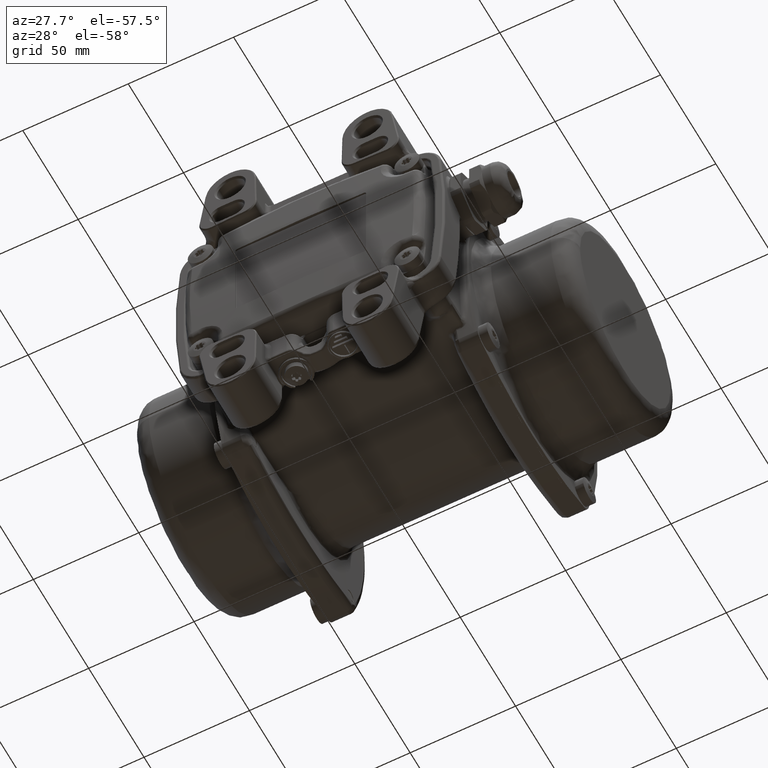
[diagram: clean part render]
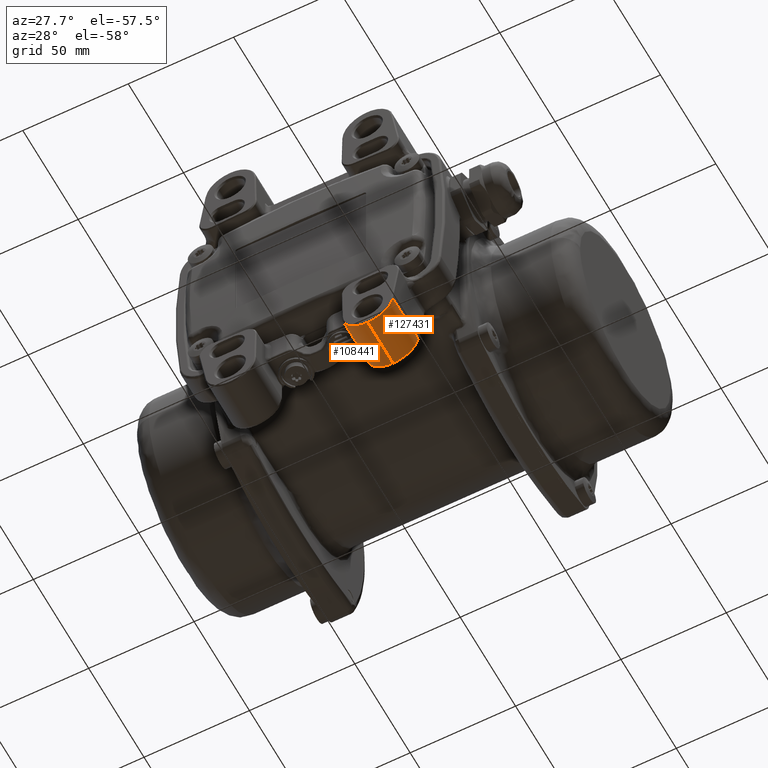
[diagram: same view with one multi-face feature highlighted, each face labeled with its STEP entity id]
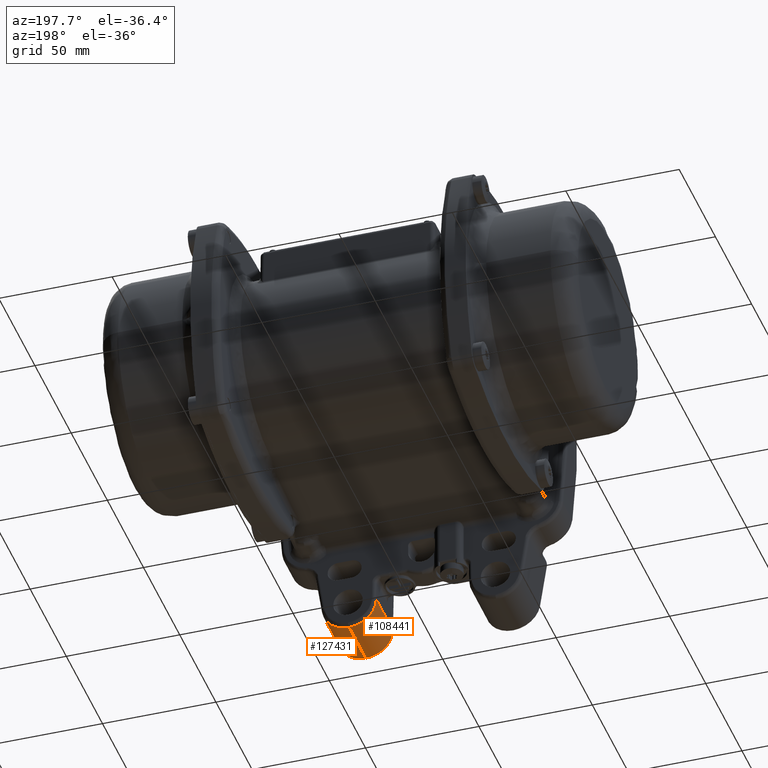
[diagram: same view with one multi-face feature highlighted, each face labeled with its STEP entity id]
A machine part, auxiliary view. The highlighted faces form ONE feature: a constant-radius fillet chain: 2 tangent blend faces with common blend radius 12 mm. The faces share edges in the B-rep.
A second angle (auxiliary view) of the same feature is appended — it is thin or edge-on in the first view.
Their STEP definitions:
[1] entity #127431 (Cylinder):
#9792 = EDGE_CURVE ( 'NONE', #117029, #71662, #145580, .T. ) ;
#19279 = LINE ( 'NONE', #88667, #157331 ) ;
#26999 = FACE_OUTER_BOUND ( 'NONE', #141202, .T. ) ;
#37051 = DIRECTION ( 'NONE',  ( 0.0000000000000000000, 0.0000000000000000000, -1.000000000000000000 ) ) ;
#38640 = AXIS2_PLACEMENT_3D ( 'NONE', #109056, #110284, #124039 ) ;
#41257 = ORIENTED_EDGE ( 'NONE', *, *, #44949, .F. ) ;
#44949 = EDGE_CURVE ( 'NONE', #113966, #71662, #19279, .T. ) ;
#52294 = CARTESIAN_POINT ( 'NONE',  ( 32.50000000000000700, -95.50000000000000000, -82.00000000000001400 ) ) ;
#54573 = CARTESIAN_POINT ( 'NONE',  ( 44.36819036034302100, -71.00000000000002800, -71.77371293355533100 ) ) ;
#54687 = CIRCLE ( 'NONE', #38640, 12.00000000000001100 ) ;
#55820 = EDGE_CURVE ( 'NONE', #117029, #143533, #147591, .T. ) ;
#58005 = DIRECTION ( 'NONE',  ( -2.775557561562899400E-017, 1.000000000000000000, -1.387778780781445100E-017 ) ) ;
#61213 = CARTESIAN_POINT ( 'NONE',  ( 44.36819036034302100, -72.50000000000001400, -71.77371293355533100 ) ) ;
#69514 = AXIS2_PLACEMENT_3D ( 'NONE', #128972, #58005, #85954 ) ;
#70265 = ORIENTED_EDGE ( 'NONE', *, *, #9792, .T. ) ;
#71662 = VERTEX_POINT ( 'NONE', #52294 ) ;
#71866 = VECTOR ( 'NONE', #168398, 1000.000000000000000 ) ;
#85954 = DIRECTION ( 'NONE',  ( -1.156482317317870300E-015, 0.0000000000000000000, -1.000000000000000000 ) ) ;
#85967 = ORIENTED_EDGE ( 'NONE', *, *, #107397, .F. ) ;
#88667 = CARTESIAN_POINT ( 'NONE',  ( 32.50000000000000700, -71.00000000000002800, -82.00000000000001400 ) ) ;
#92338 = DIRECTION ( 'NONE',  ( 2.775557561562899400E-017, -1.000000000000000000, 1.387778780781445100E-017 ) ) ;
#98010 = AXIS2_PLACEMENT_3D ( 'NONE', #122955, #122336, #37051 ) ;
#107397 = EDGE_CURVE ( 'NONE', #143533, #113966, #54687, .T. ) ;
#109056 = CARTESIAN_POINT ( 'NONE',  ( 32.50000000000000700, -72.50000000000001400, -70.00000000000000000 ) ) ;
#110284 = DIRECTION ( 'NONE',  ( -2.775557561562899400E-017, 1.000000000000000000, -1.387778780781445100E-017 ) ) ;
#113966 = VERTEX_POINT ( 'NONE', #182305 ) ;
#117029 = VERTEX_POINT ( 'NONE', #125077 ) ;
#122336 = DIRECTION ( 'NONE',  ( 2.775557561562899400E-017, -1.000000000000000000, 1.387778780781445100E-017 ) ) ;
#122955 = CARTESIAN_POINT ( 'NONE',  ( 32.50000000000000700, -71.00000000000002800, -70.00000000000000000 ) ) ;
#124039 = DIRECTION ( 'NONE',  ( -1.156482317317870300E-015, 0.0000000000000000000, -1.000000000000000000 ) ) ;
#125077 = CARTESIAN_POINT ( 'NONE',  ( 44.36819036034302100, -95.50000000000000000, -71.77371293355533100 ) ) ;
#127431 = ADVANCED_FACE ( 'NONE', ( #26999 ), #145008, .T. ) ;
#128972 = CARTESIAN_POINT ( 'NONE',  ( 32.50000000000000700, -95.50000000000000000, -70.00000000000000000 ) ) ;
#141202 = EDGE_LOOP ( 'NONE', ( #41257, #85967, #142752, #70265 ) ) ;
#142752 = ORIENTED_EDGE ( 'NONE', *, *, #55820, .F. ) ;
#143533 = VERTEX_POINT ( 'NONE', #61213 ) ;
#145008 = CYLINDRICAL_SURFACE ( 'NONE', #98010, 12.00000000000001100 ) ;
#145580 = CIRCLE ( 'NONE', #69514, 12.00000000000001100 ) ;
#147591 = LINE ( 'NONE', #54573, #71866 ) ;
#157331 = VECTOR ( 'NONE', #92338, 1000.000000000000000 ) ;
#168398 = DIRECTION ( 'NONE',  ( -2.775557561562899400E-017, 1.000000000000000000, -1.387778780781445100E-017 ) ) ;
#182305 = CARTESIAN_POINT ( 'NONE',  ( 32.50000000000000700, -72.50000000000001400, -82.00000000000001400 ) ) ;
[2] entity #108441 (Cylinder):
#9692 = CYLINDRICAL_SURFACE ( 'NONE', #146004, 12.00000000000001100 ) ;
#10321 = DIRECTION ( 'NONE',  ( 0.0000000000000000000, 0.0000000000000000000, -1.000000000000000000 ) ) ;
#18318 = EDGE_CURVE ( 'NONE', #44065, #25764, #28880, .T. ) ;
#19279 = LINE ( 'NONE', #88667, #157331 ) ;
#25764 = VERTEX_POINT ( 'NONE', #181984 ) ;
#28880 = LINE ( 'NONE', #29918, #166853 ) ;
#29918 = CARTESIAN_POINT ( 'NONE',  ( 20.50182765812330400, -71.00000000000002800, -70.20942887724733300 ) ) ;
#38380 = DIRECTION ( 'NONE',  ( -2.775557561562899400E-017, 1.000000000000000000, -1.387778780781445100E-017 ) ) ;
#40224 = EDGE_CURVE ( 'NONE', #71662, #44065, #51955, .T. ) ;
#44065 = VERTEX_POINT ( 'NONE', #103502 ) ;
#44949 = EDGE_CURVE ( 'NONE', #113966, #71662, #19279, .T. ) ;
#51955 = CIRCLE ( 'NONE', #112870, 12.00000000000001100 ) ;
#52065 = CARTESIAN_POINT ( 'NONE',  ( 32.50000000000000700, -72.50000000000001400, -70.00000000000000000 ) ) ;
#52294 = CARTESIAN_POINT ( 'NONE',  ( 32.50000000000000700, -95.50000000000000000, -82.00000000000001400 ) ) ;
#56189 = CARTESIAN_POINT ( 'NONE',  ( 32.50000000000000700, -95.50000000000000000, -70.00000000000000000 ) ) ;
#70376 = CARTESIAN_POINT ( 'NONE',  ( 32.50000000000000700, -71.00000000000002800, -70.00000000000000000 ) ) ;
#70503 = DIRECTION ( 'NONE',  ( 0.0000000000000000000, 0.0000000000000000000, -1.000000000000000000 ) ) ;
#71662 = VERTEX_POINT ( 'NONE', #52294 ) ;
#75348 = ORIENTED_EDGE ( 'NONE', *, *, #44949, .T. ) ;
#83054 = FACE_OUTER_BOUND ( 'NONE', #153466, .T. ) ;
#88667 = CARTESIAN_POINT ( 'NONE',  ( 32.50000000000000700, -71.00000000000002800, -82.00000000000001400 ) ) ;
#90382 = ORIENTED_EDGE ( 'NONE', *, *, #40224, .T. ) ;
#92338 = DIRECTION ( 'NONE',  ( 2.775557561562899400E-017, -1.000000000000000000, 1.387778780781445100E-017 ) ) ;
#99610 = DIRECTION ( 'NONE',  ( -2.775557561562899400E-017, 1.000000000000000000, -1.387778780781445100E-017 ) ) ;
#103502 = CARTESIAN_POINT ( 'NONE',  ( 20.50182773467363600, -95.50000000000392200, -70.20943326250476000 ) ) ;
#104639 = AXIS2_PLACEMENT_3D ( 'NONE', #52065, #38380, #10321 ) ;
#108441 = ADVANCED_FACE ( 'NONE', ( #83054 ), #9692, .T. ) ;
#110410 = ORIENTED_EDGE ( 'NONE', *, *, #18318, .T. ) ;
#112870 = AXIS2_PLACEMENT_3D ( 'NONE', #56189, #167557, #70503 ) ;
#113966 = VERTEX_POINT ( 'NONE', #182305 ) ;
#114547 = DIRECTION ( 'NONE',  ( 0.0000000000000000000, 0.0000000000000000000, -1.000000000000000000 ) ) ;
#130455 = EDGE_CURVE ( 'NONE', #113966, #25764, #146152, .T. ) ;
#146004 = AXIS2_PLACEMENT_3D ( 'NONE', #70376, #169894, #114547 ) ;
#146152 = CIRCLE ( 'NONE', #104639, 12.00000000000001100 ) ;
#153466 = EDGE_LOOP ( 'NONE', ( #172461, #75348, #90382, #110410 ) ) ;
#157331 = VECTOR ( 'NONE', #92338, 1000.000000000000000 ) ;
#166853 = VECTOR ( 'NONE', #99610, 1000.000000000000000 ) ;
#167557 = DIRECTION ( 'NONE',  ( -2.775557561562899400E-017, 1.000000000000000000, -1.387778780781445100E-017 ) ) ;
#169894 = DIRECTION ( 'NONE',  ( 2.775557561562899400E-017, -1.000000000000000000, 1.387778780781445100E-017 ) ) ;
#172461 = ORIENTED_EDGE ( 'NONE', *, *, #130455, .F. ) ;
#181984 = CARTESIAN_POINT ( 'NONE',  ( 20.50182765812330400, -72.50000000000001400, -70.20942887724731900 ) ) ;
#182305 = CARTESIAN_POINT ( 'NONE',  ( 32.50000000000000700, -72.50000000000001400, -82.00000000000001400 ) ) ;